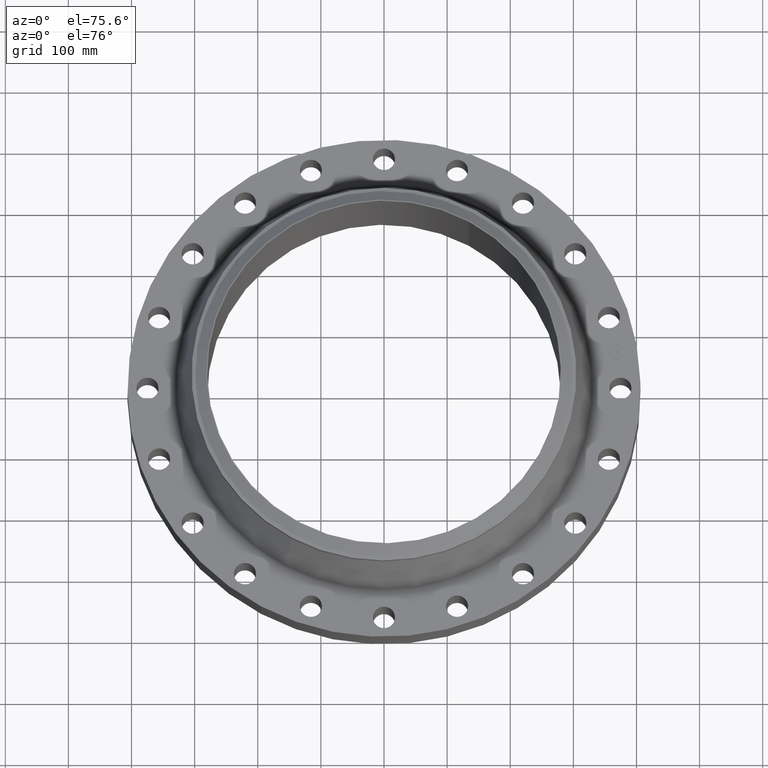
[diagram: clean part render]
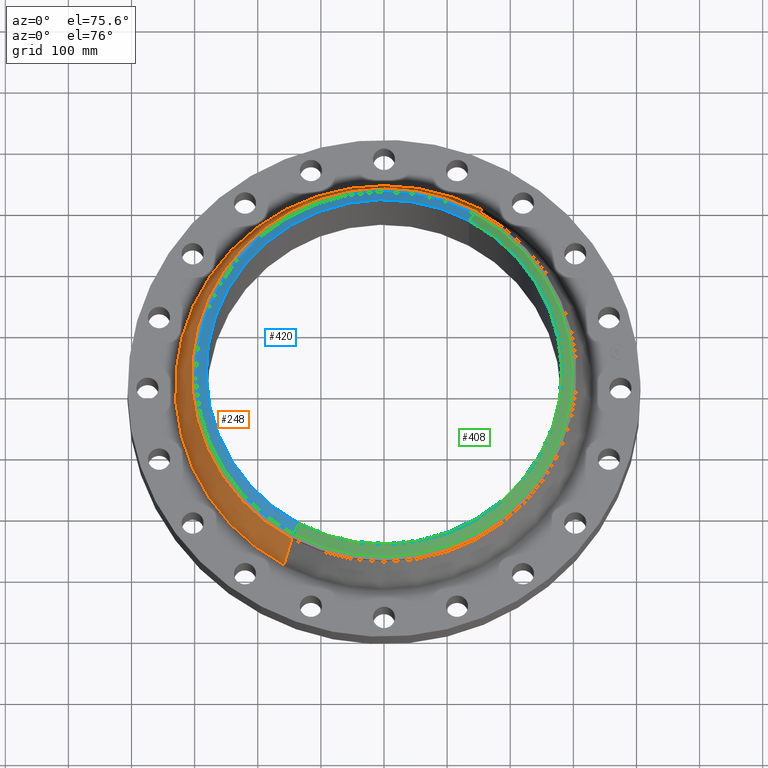
[diagram: same view with three faces highlighted in distinct colors, each labeled with its STEP entity id]
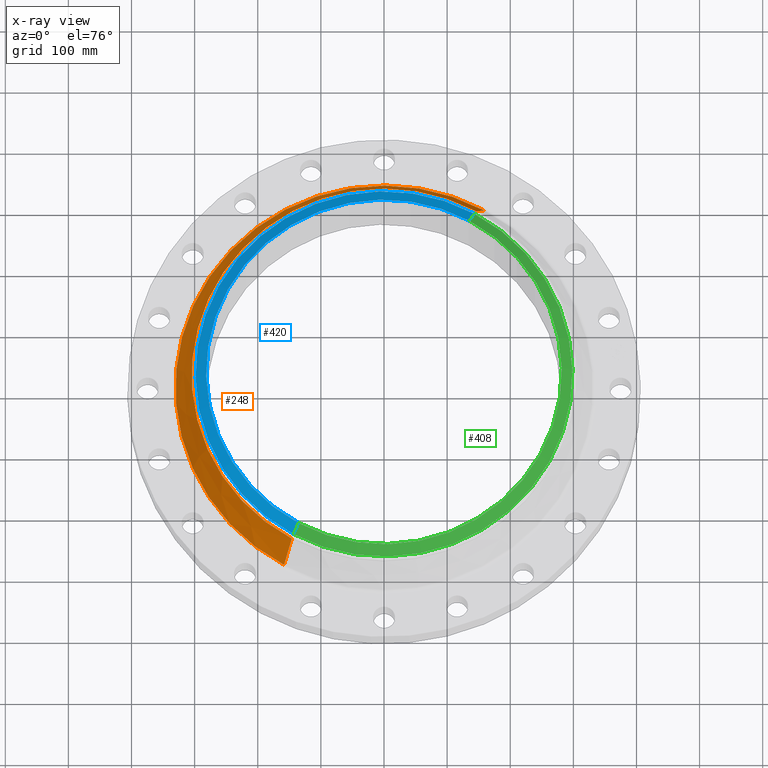
[diagram: x-ray of the same camera — body ghosted, the three highlighted faces saturated]
A machine part, auxiliary view with three faces highlighted in distinct colors.
The next image is the same camera in x-ray (body ghosted, the three faces saturated) — at least one of them is partly hidden behind the body in this view.
Their STEP definitions:

[orange] entity #248 — the highlighted conical surface has half-angle 17.797 deg.
#196=AXIS2_PLACEMENT_3D('Circle Axis2P3D',#194,#195,$) ;
#209=AXIS2_PLACEMENT_3D('Cone Axis2P3D',#206,#207,#208) ;
#239=AXIS2_PLACEMENT_3D('Circle Axis2P3D',#237,#238,$) ;
#167=CARTESIAN_POINT('Vertex',(6.23697926737,11.4167139695,2.05358745092)) ;
#174=CARTESIAN_POINT('Vertex',(-6.23697926737,-11.4167139695,2.05358745092)) ;
#194=CARTESIAN_POINT('Axis2P3D Location',(0.,0.,2.05358745092)) ;
#206=CARTESIAN_POINT('Axis2P3D Location',(0.,0.,5.19762661457)) ;
#211=CARTESIAN_POINT('Line Origine',(5.99504286532,10.9738523561,3.62560703274)) ;
#215=CARTESIAN_POINT('Vertex',(5.75310646327,10.5309907427,5.19762661457)) ;
#222=CARTESIAN_POINT('Vertex',(-5.75310646327,-10.5309907427,5.19762661457)) ;
#225=CARTESIAN_POINT('Line Origine',(-5.99504286532,-10.9738523561,3.62560703274)) ;
#237=CARTESIAN_POINT('Axis2P3D Location',(0.,0.,5.19762661457)) ;
#195=DIRECTION('Axis2P3D Direction',(0.,0.,-0.0393700787402)) ;
#207=DIRECTION('Axis2P3D Direction',(0.,0.,-0.0393700787402)) ;
#208=DIRECTION('Axis2P3D XDirection',(-0.0188750212049,-0.0345504945626,0.)) ;
#212=DIRECTION('Vector Direction',(0.00576915393756,0.0105603654474,-0.0374859793052)) ;
#226=DIRECTION('Vector Direction',(-0.00576915393756,-0.0105603654474,-0.0374859793052)) ;
#238=DIRECTION('Axis2P3D Direction',(0.,0.,-0.0393700787402)) ;
#213=VECTOR('Line Direction',#212,0.0393700787402) ;
#227=VECTOR('Line Direction',#226,0.0393700787402) ;
#243=ORIENTED_EDGE('',*,*,#198,.F.) ;
#244=ORIENTED_EDGE('',*,*,#229,.T.) ;
#245=ORIENTED_EDGE('',*,*,#241,.T.) ;
#246=ORIENTED_EDGE('',*,*,#217,.F.) ;
#248=ADVANCED_FACE('PartBody',(#247),#210,.T.) ;
#197=CIRCLE('generated circle',#196,13.0092762382) ;
#240=CIRCLE('generated circle',#239,12.) ;
#210=CONICAL_SURFACE('Cone',#209,12.,0.310621230668) ;
#198=EDGE_CURVE('',#175,#168,#197,.T.) ;
#217=EDGE_CURVE('',#168,#216,#214,.F.) ;
#229=EDGE_CURVE('',#175,#223,#228,.F.) ;
#241=EDGE_CURVE('',#223,#216,#240,.T.) ;
#242=EDGE_LOOP('',(#243,#244,#245,#246)) ;
#247=FACE_OUTER_BOUND('',#242,.T.) ;
#214=LINE('Line',#211,#213) ;
#228=LINE('Line',#225,#227) ;
#168=VERTEX_POINT('',#167) ;
#175=VERTEX_POINT('',#174) ;
#216=VERTEX_POINT('',#215) ;
#223=VERTEX_POINT('',#222) ;

[blue] entity #420 — the highlighted conical surface has half-angle 52.5 deg.
#368=AXIS2_PLACEMENT_3D('Circle Axis2P3D',#366,#367,$) ;
#381=AXIS2_PLACEMENT_3D('Cone Axis2P3D',#378,#379,#380) ;
#411=AXIS2_PLACEMENT_3D('Circle Axis2P3D',#409,#410,$) ;
#344=CARTESIAN_POINT('Vertex',(-5.63647827087,-10.3175042685,5.49108306753)) ;
#351=CARTESIAN_POINT('Vertex',(5.63647827087,10.3175042685,5.49108306753)) ;
#366=CARTESIAN_POINT('Axis2P3D Location',(0.,0.,5.49108306753)) ;
#378=CARTESIAN_POINT('Axis2P3D Location',(0.,0.,6.00000000002)) ;
#383=CARTESIAN_POINT('Line Origine',(-5.4774927417,-10.0264832094,5.74554153378)) ;
#387=CARTESIAN_POINT('Vertex',(-5.31850721253,-9.73546215037,6.00000000002)) ;
#390=CARTESIAN_POINT('Line Origine',(5.4774927417,10.0264832094,5.74554153378)) ;
#394=CARTESIAN_POINT('Vertex',(5.31850721253,9.73546215037,6.00000000002)) ;
#409=CARTESIAN_POINT('Axis2P3D Location',(0.,0.,6.00000000002)) ;
#367=DIRECTION('Axis2P3D Direction',(0.,-0.,-0.0393700787402)) ;
#379=DIRECTION('Axis2P3D Direction',(-0.,-0.,-0.0393700787402)) ;
#380=DIRECTION('Axis2P3D XDirection',(-0.0188750212049,-0.0345504945626,0.)) ;
#384=DIRECTION('Vector Direction',(-0.014974561121,-0.02741075027,-0.023966985394)) ;
#391=DIRECTION('Vector Direction',(0.014974561121,0.02741075027,-0.023966985394)) ;
#410=DIRECTION('Axis2P3D Direction',(0.,-0.,-0.0393700787402)) ;
#385=VECTOR('Line Direction',#384,0.0393700787402) ;
#392=VECTOR('Line Direction',#391,0.0393700787402) ;
#415=ORIENTED_EDGE('',*,*,#396,.T.) ;
#416=ORIENTED_EDGE('',*,*,#370,.F.) ;
#417=ORIENTED_EDGE('',*,*,#389,.F.) ;
#418=ORIENTED_EDGE('',*,*,#413,.T.) ;
#420=ADVANCED_FACE('PartBody',(#419),#382,.T.) ;
#369=CIRCLE('generated circle',#368,11.7567334591) ;
#412=CIRCLE('generated circle',#411,11.0935) ;
#382=CONICAL_SURFACE('Cone',#381,11.0935,0.916297857297) ;
#370=EDGE_CURVE('',#345,#352,#369,.T.) ;
#389=EDGE_CURVE('',#388,#345,#386,.T.) ;
#396=EDGE_CURVE('',#395,#352,#393,.T.) ;
#413=EDGE_CURVE('',#388,#395,#412,.T.) ;
#414=EDGE_LOOP('',(#415,#416,#417,#418)) ;
#419=FACE_OUTER_BOUND('',#414,.T.) ;
#386=LINE('Line',#383,#385) ;
#393=LINE('Line',#390,#392) ;
#345=VERTEX_POINT('',#344) ;
#352=VERTEX_POINT('',#351) ;
#388=VERTEX_POINT('',#387) ;
#395=VERTEX_POINT('',#394) ;

[green] entity #408 — the highlighted conical surface has half-angle 52.5 deg.
#356=AXIS2_PLACEMENT_3D('Circle Axis2P3D',#354,#355,$) ;
#381=AXIS2_PLACEMENT_3D('Cone Axis2P3D',#378,#379,#380) ;
#399=AXIS2_PLACEMENT_3D('Circle Axis2P3D',#397,#398,$) ;
#344=CARTESIAN_POINT('Vertex',(-5.63647827087,-10.3175042685,5.49108306753)) ;
#351=CARTESIAN_POINT('Vertex',(5.63647827087,10.3175042685,5.49108306753)) ;
#354=CARTESIAN_POINT('Axis2P3D Location',(0.,0.,5.49108306753)) ;
#378=CARTESIAN_POINT('Axis2P3D Location',(0.,0.,6.00000000002)) ;
#383=CARTESIAN_POINT('Line Origine',(-5.4774927417,-10.0264832094,5.74554153378)) ;
#387=CARTESIAN_POINT('Vertex',(-5.31850721253,-9.73546215037,6.00000000002)) ;
#390=CARTESIAN_POINT('Line Origine',(5.4774927417,10.0264832094,5.74554153378)) ;
#394=CARTESIAN_POINT('Vertex',(5.31850721253,9.73546215037,6.00000000002)) ;
#397=CARTESIAN_POINT('Axis2P3D Location',(0.,0.,6.00000000002)) ;
#355=DIRECTION('Axis2P3D Direction',(0.,-0.,-0.0393700787402)) ;
#379=DIRECTION('Axis2P3D Direction',(-0.,-0.,-0.0393700787402)) ;
#380=DIRECTION('Axis2P3D XDirection',(-0.0188750212049,-0.0345504945626,0.)) ;
#384=DIRECTION('Vector Direction',(-0.014974561121,-0.02741075027,-0.023966985394)) ;
#391=DIRECTION('Vector Direction',(0.014974561121,0.02741075027,-0.023966985394)) ;
#398=DIRECTION('Axis2P3D Direction',(0.,-0.,-0.0393700787402)) ;
#385=VECTOR('Line Direction',#384,0.0393700787402) ;
#392=VECTOR('Line Direction',#391,0.0393700787402) ;
#403=ORIENTED_EDGE('',*,*,#389,.T.) ;
#404=ORIENTED_EDGE('',*,*,#358,.F.) ;
#405=ORIENTED_EDGE('',*,*,#396,.F.) ;
#406=ORIENTED_EDGE('',*,*,#401,.T.) ;
#408=ADVANCED_FACE('PartBody',(#407),#382,.T.) ;
#357=CIRCLE('generated circle',#356,11.7567334591) ;
#400=CIRCLE('generated circle',#399,11.0935) ;
#382=CONICAL_SURFACE('Cone',#381,11.0935,0.916297857297) ;
#358=EDGE_CURVE('',#352,#345,#357,.T.) ;
#389=EDGE_CURVE('',#388,#345,#386,.T.) ;
#396=EDGE_CURVE('',#395,#352,#393,.T.) ;
#401=EDGE_CURVE('',#395,#388,#400,.T.) ;
#402=EDGE_LOOP('',(#403,#404,#405,#406)) ;
#407=FACE_OUTER_BOUND('',#402,.T.) ;
#386=LINE('Line',#383,#385) ;
#393=LINE('Line',#390,#392) ;
#345=VERTEX_POINT('',#344) ;
#352=VERTEX_POINT('',#351) ;
#388=VERTEX_POINT('',#387) ;
#395=VERTEX_POINT('',#394) ;